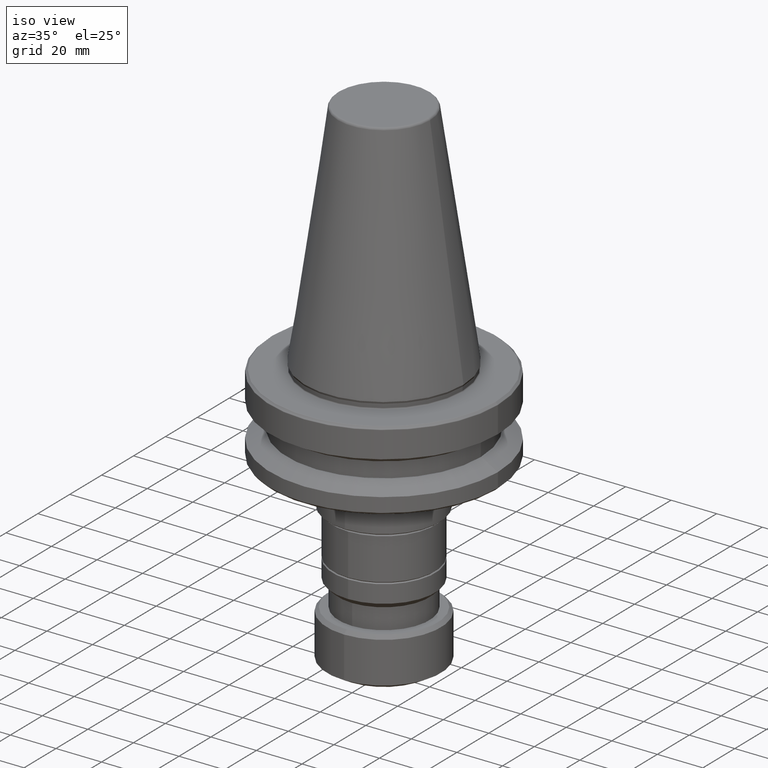
[diagram: clean part render]
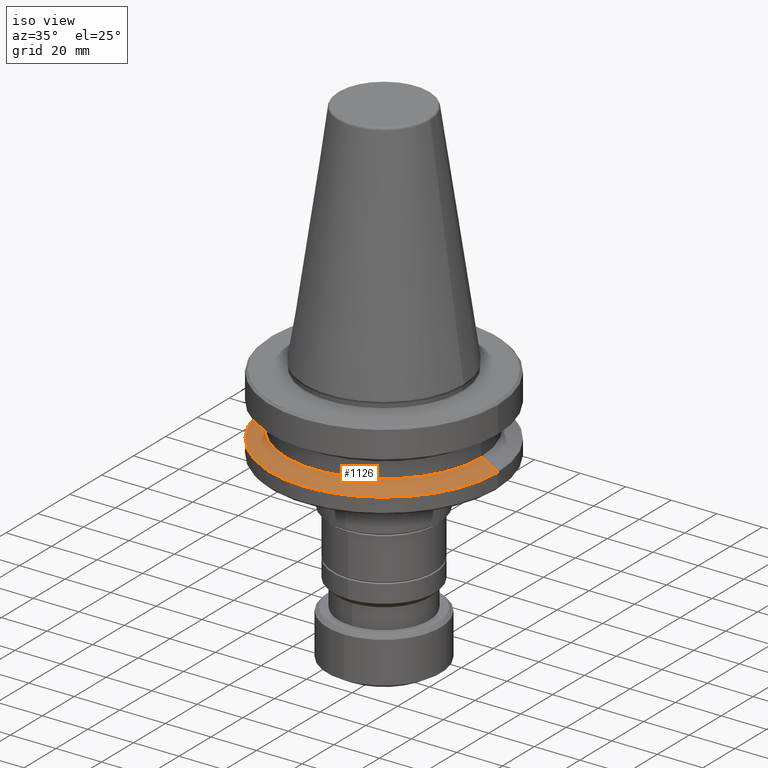
[diagram: same view with one face highlighted and labeled with its STEP entity id]
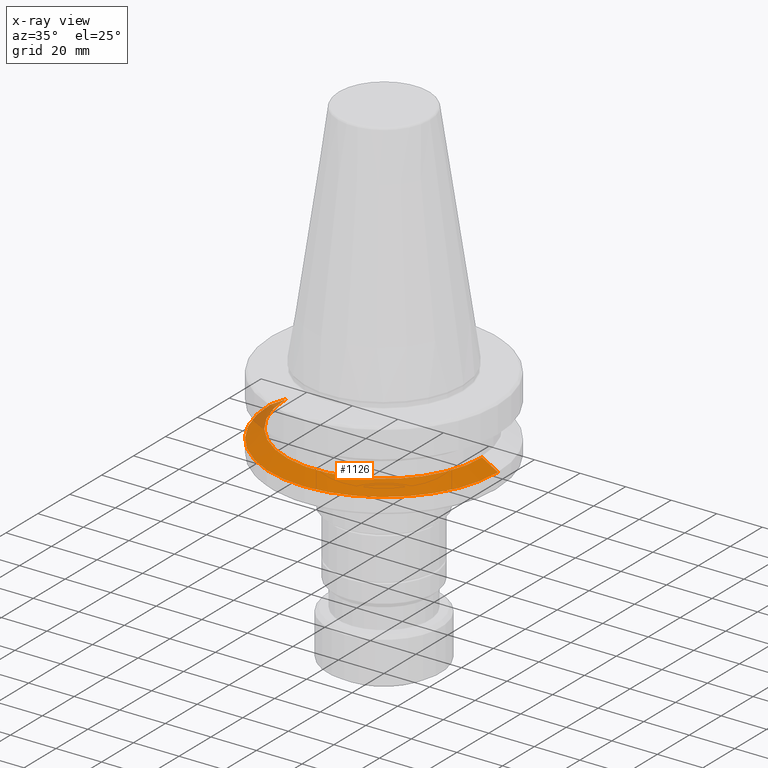
[diagram: x-ray of the same camera — body ghosted, the highlighted face saturated]
A machine part, iso view. The second image highlights one B-rep face of the part: STEP entity #1126.
The next image is the same camera in x-ray: the body ghosted, the highlighted face saturated — about 5% of this face is hidden behind the body in this view.
In plain terms, the highlighted conical surface has half-angle 60 deg.
Its self-contained STEP definition (entity closure, byte-faithful):
#72 = AXIS2_PLACEMENT_3D ( 'NONE', #730, #1736, #616 ) ;
#151 = ORIENTED_EDGE ( 'NONE', *, *, #1545, .F. ) ;
#204 = CARTESIAN_POINT ( 'NONE',  ( 0.0000000000000000000, 0.0000000000000000000, -26.70000000000000300 ) ) ;
#207 = CARTESIAN_POINT ( 'NONE',  ( -50.00000000000000000, 6.123233995736766100E-015, -30.69977999677324500 ) ) ;
#281 = DIRECTION ( 'NONE',  ( 1.000000000000000000, 0.0000000000000000000, 0.0000000000000000000 ) ) ;
#386 = EDGE_CURVE ( 'NONE', #1834, #1169, #736, .T. ) ;
#392 = CARTESIAN_POINT ( 'NONE',  ( -43.07217782649103600, 0.0000000000000000000, -26.70000000000000300 ) ) ;
#400 = DIRECTION ( 'NONE',  ( 0.0000000000000000000, 0.0000000000000000000, -1.000000000000000000 ) ) ;
#418 = VECTOR ( 'NONE', #1666, 1000.000000000000000 ) ;
#425 = ORIENTED_EDGE ( 'NONE', *, *, #386, .T. ) ;
#461 = EDGE_CURVE ( 'NONE', #1834, #871, #1732, .T. ) ;
#464 = CIRCLE ( 'NONE', #72, 50.00000000000000000 ) ;
#616 = DIRECTION ( 'NONE',  ( 1.000000000000000000, 0.0000000000000000000, 0.0000000000000000000 ) ) ;
#730 = CARTESIAN_POINT ( 'NONE',  ( 0.0000000000000000000, 0.0000000000000000000, -30.69977999677324500 ) ) ;
#736 = LINE ( 'NONE', #392, #1166 ) ;
#788 = LINE ( 'NONE', #1504, #418 ) ;
#824 = VERTEX_POINT ( 'NONE', #1512 ) ;
#871 = VERTEX_POINT ( 'NONE', #1229 ) ;
#1009 = EDGE_LOOP ( 'NONE', ( #151, #1355, #425, #1875 ) ) ;
#1032 = EDGE_CURVE ( 'NONE', #1169, #824, #464, .T. ) ;
#1037 = DIRECTION ( 'NONE',  ( -0.0000000000000000000, -0.0000000000000000000, 1.000000000000000000 ) ) ;
#1126 = ADVANCED_FACE ( 'NONE', ( #1891 ), #1394, .T. ) ;
#1166 = VECTOR ( 'NONE', #1420, 1000.000000000000000 ) ;
#1169 = VERTEX_POINT ( 'NONE', #207 ) ;
#1229 = CARTESIAN_POINT ( 'NONE',  ( 43.07217782649103600, 5.699027233244276000E-015, -26.70000000000000300 ) ) ;
#1355 = ORIENTED_EDGE ( 'NONE', *, *, #461, .F. ) ;
#1369 = DIRECTION ( 'NONE',  ( -1.000000000000000000, 0.0000000000000000000, 0.0000000000000000000 ) ) ;
#1394 = CONICAL_SURFACE ( 'NONE', #1882, 43.07217782649103600, 1.047197551196599600 ) ;
#1420 = DIRECTION ( 'NONE',  ( -0.8660254037844396000, 0.0000000000000000000, -0.4999999999999983900 ) ) ;
#1504 = CARTESIAN_POINT ( 'NONE',  ( 43.07217782649103600, 5.274820470751785100E-015, -26.70000000000000300 ) ) ;
#1512 = CARTESIAN_POINT ( 'NONE',  ( 50.00000000000000000, 0.0000000000000000000, -30.69977999677324500 ) ) ;
#1545 = EDGE_CURVE ( 'NONE', #871, #824, #788, .T. ) ;
#1585 = CARTESIAN_POINT ( 'NONE',  ( -43.07217782649103600, 0.0000000000000000000, -26.70000000000000300 ) ) ;
#1666 = DIRECTION ( 'NONE',  ( 0.8660254037844396000, 1.060575238724908000E-016, -0.4999999999999983900 ) ) ;
#1719 = CARTESIAN_POINT ( 'NONE',  ( 0.0000000000000000000, 0.0000000000000000000, -26.70000000000000300 ) ) ;
#1732 = CIRCLE ( 'NONE', #1794, 43.07217782649103600 ) ;
#1736 = DIRECTION ( 'NONE',  ( -0.0000000000000000000, -0.0000000000000000000, 1.000000000000000000 ) ) ;
#1794 = AXIS2_PLACEMENT_3D ( 'NONE', #204, #1037, #281 ) ;
#1834 = VERTEX_POINT ( 'NONE', #1585 ) ;
#1875 = ORIENTED_EDGE ( 'NONE', *, *, #1032, .T. ) ;
#1882 = AXIS2_PLACEMENT_3D ( 'NONE', #1719, #400, #1369 ) ;
#1891 = FACE_OUTER_BOUND ( 'NONE', #1009, .T. ) ;